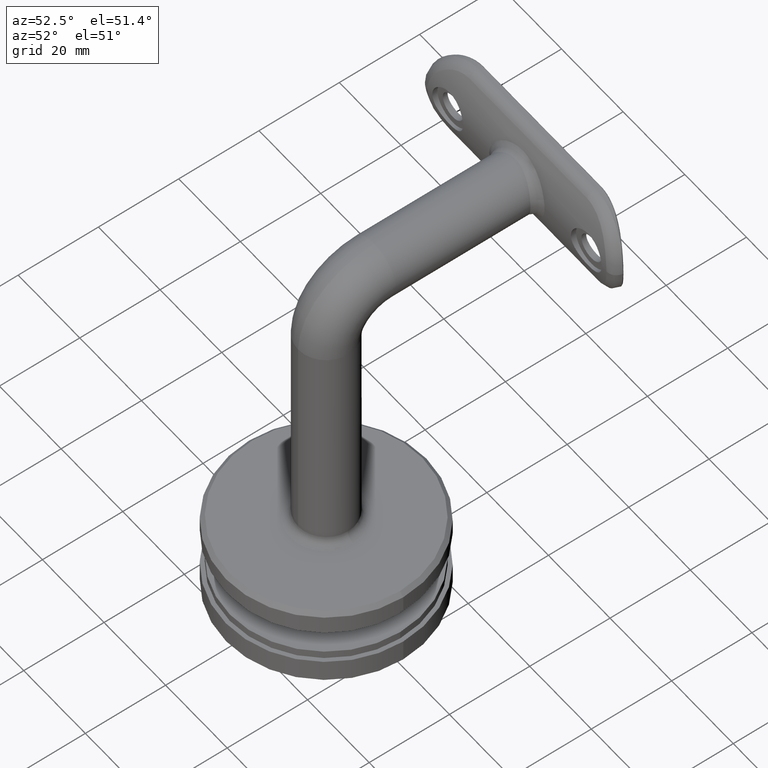
[diagram: clean part render]
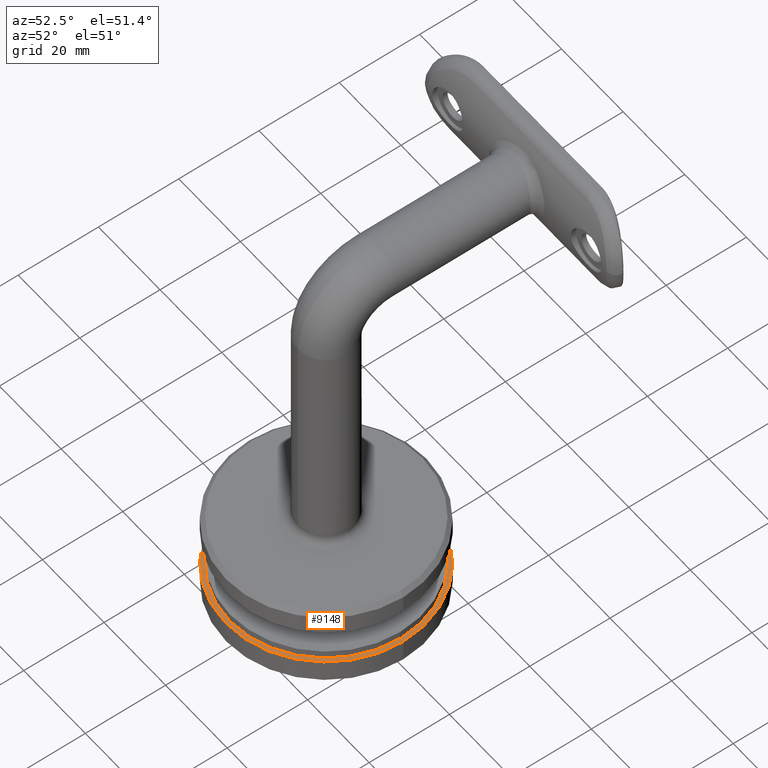
[diagram: same view with one face highlighted and labeled with its STEP entity id]
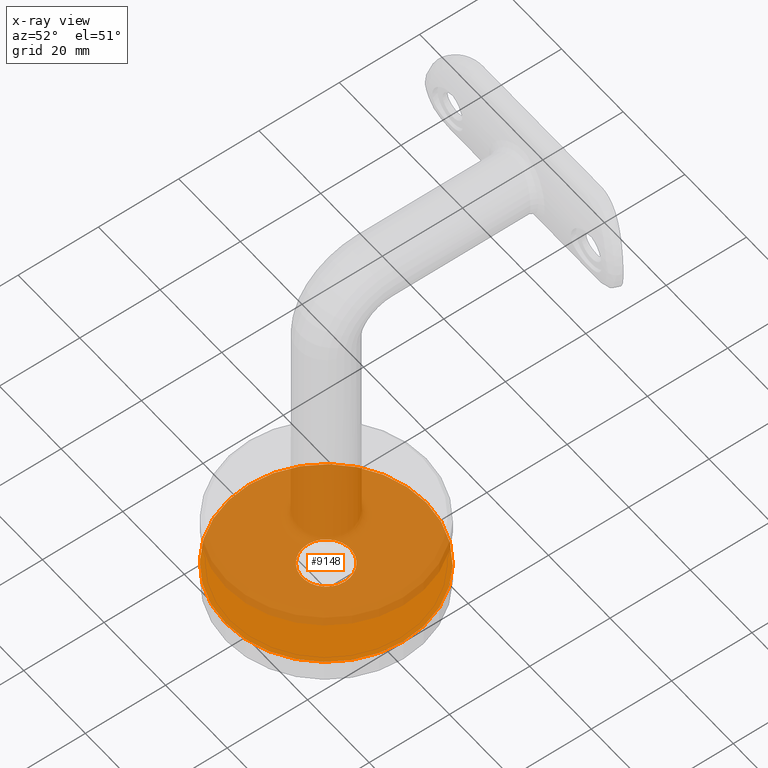
[diagram: x-ray of the same camera — body ghosted, the highlighted face saturated]
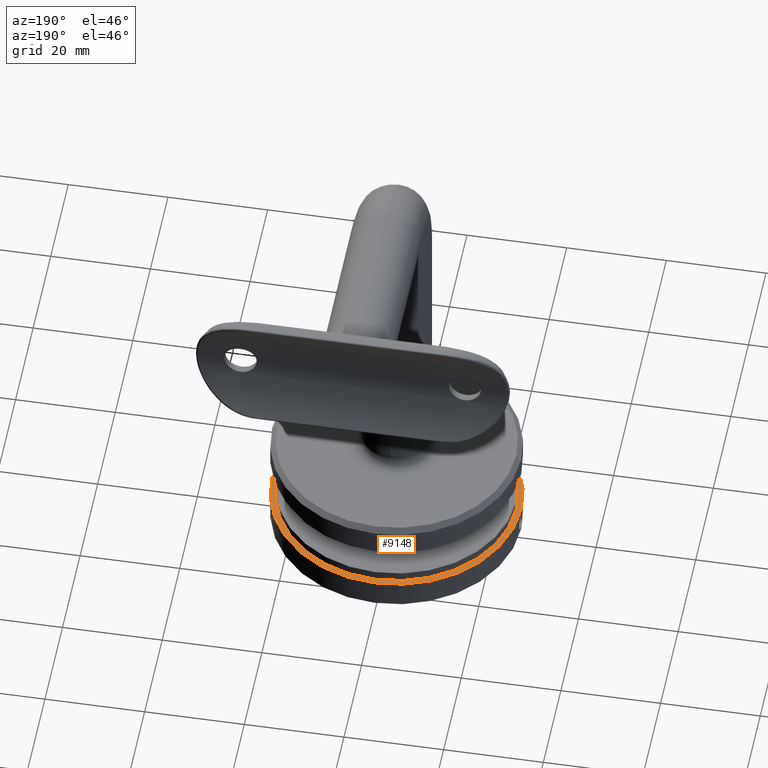
[diagram: same view with one face highlighted and labeled with its STEP entity id]
A machine part, auxiliary view. The second image highlights one B-rep face of the part: STEP entity #9148.
The next image is the same camera in x-ray: the body ghosted, the highlighted face saturated — about 76% of this face is hidden behind the body in this view.
A second angle (auxiliary view) of the same face is appended — the face is thin or edge-on in the first view.
In plain terms, the highlighted planar face has unit normal (0, 0, 1).
Its self-contained STEP definition (entity closure, byte-faithful):
#275 = ORIENTED_EDGE ( 'NONE', *, *, #22290, .T. ) ;
#616 = VERTEX_POINT ( 'NONE', #21967 ) ;
#636 = CARTESIAN_POINT ( 'NONE',  ( 7.347880794884119736E-16, -6.000000000000000000, 6.000000000000004441 ) ) ;
#678 = DIRECTION ( 'NONE',  ( 0.000000000000000000, 1.000000000000000000, 1.445602896647339410E-16 ) ) ;
#783 = CARTESIAN_POINT ( 'NONE',  ( 0.000000000000000000, -7.347880794884118750E-16, 6.000000000000005329 ) ) ;
#1135 = ORIENTED_EDGE ( 'NONE', *, *, #16023, .F. ) ;
#1779 = DIRECTION ( 'NONE',  ( 0.000000000000000000, -1.000000000000000000, -1.224646799147353207E-16 ) ) ;
#2317 = CIRCLE ( 'NONE', #3989, 25.00000000000000355 ) ;
#2873 = CARTESIAN_POINT ( 'NONE',  ( 0.000000000000000000, -7.347880794884114806E-16, 6.000000000000005329 ) ) ;
#3901 = CIRCLE ( 'NONE', #14019, 5.999999999999999112 ) ;
#3989 = AXIS2_PLACEMENT_3D ( 'NONE', #7028, #15768, #20982 ) ;
#4077 = FACE_OUTER_BOUND ( 'NONE', #19002, .T. ) ;
#4879 = DIRECTION ( 'NONE',  ( 0.000000000000000000, 1.224646799147353207E-16, -1.000000000000000000 ) ) ;
#5892 = ORIENTED_EDGE ( 'NONE', *, *, #9458, .T. ) ;
#5964 = CARTESIAN_POINT ( 'NONE',  ( 0.000000000000000000, -7.347880794884118750E-16, 6.000000000000005329 ) ) ;
#7006 = CARTESIAN_POINT ( 'NONE',  ( 3.061616997868383437E-15, -25.00000000000000355, 6.000000000000001776 ) ) ;
#7028 = CARTESIAN_POINT ( 'NONE',  ( 0.000000000000000000, -7.347880794884114806E-16, 6.000000000000005329 ) ) ;
#7101 = CARTESIAN_POINT ( 'NONE',  ( 0.000000000000000000, 5.999999999999998224, 6.000000000000006217 ) ) ;
#7370 = FACE_BOUND ( 'NONE', #16174, .T. ) ;
#7980 = DIRECTION ( 'NONE',  ( 0.000000000000000000, 1.000000000000000000, 1.445602896647339410E-16 ) ) ;
#9148 = ADVANCED_FACE ( 'NONE', ( #7370, #4077 ), #20793, .T. ) ;
#9458 = EDGE_CURVE ( 'NONE', #19756, #19598, #18246, .T. ) ;
#9915 = DIRECTION ( 'NONE',  ( 0.000000000000000000, 1.000000000000000000, 1.387778780781445429E-16 ) ) ;
#12019 = VERTEX_POINT ( 'NONE', #7006 ) ;
#14019 = AXIS2_PLACEMENT_3D ( 'NONE', #783, #16483, #7980 ) ;
#15502 = DIRECTION ( 'NONE',  ( 0.000000000000000000, -1.224646799147353207E-16, 1.000000000000000000 ) ) ;
#15768 = DIRECTION ( 'NONE',  ( 0.000000000000000000, 1.224646799147353207E-16, -1.000000000000000000 ) ) ;
#16023 = EDGE_CURVE ( 'NONE', #12019, #616, #2317, .T. ) ;
#16109 = ORIENTED_EDGE ( 'NONE', *, *, #18623, .F. ) ;
#16143 = CIRCLE ( 'NONE', #20913, 25.00000000000000355 ) ;
#16166 = DIRECTION ( 'NONE',  ( 0.000000000000000000, 1.224646799147353207E-16, -1.000000000000000000 ) ) ;
#16174 = EDGE_LOOP ( 'NONE', ( #275, #5892 ) ) ;
#16483 = DIRECTION ( 'NONE',  ( 0.000000000000000000, 1.224646799147353207E-16, -1.000000000000000000 ) ) ;
#18246 = CIRCLE ( 'NONE', #22478, 5.999999999999999112 ) ;
#18623 = EDGE_CURVE ( 'NONE', #616, #12019, #16143, .T. ) ;
#19002 = EDGE_LOOP ( 'NONE', ( #16109, #1135 ) ) ;
#19106 = CARTESIAN_POINT ( 'NONE',  ( 0.000000000000000000, 5.999999999999998224, 6.000000000000005329 ) ) ;
#19598 = VERTEX_POINT ( 'NONE', #7101 ) ;
#19756 = VERTEX_POINT ( 'NONE', #636 ) ;
#20087 = AXIS2_PLACEMENT_3D ( 'NONE', #19106, #15502, #1779 ) ;
#20793 = PLANE ( 'NONE',  #20087 ) ;
#20913 = AXIS2_PLACEMENT_3D ( 'NONE', #2873, #4879, #9915 ) ;
#20982 = DIRECTION ( 'NONE',  ( 0.000000000000000000, 1.000000000000000000, 1.387778780781445429E-16 ) ) ;
#21967 = CARTESIAN_POINT ( 'NONE',  ( 0.000000000000000000, 25.00000000000000355, 6.000000000000008882 ) ) ;
#22290 = EDGE_CURVE ( 'NONE', #19598, #19756, #3901, .T. ) ;
#22478 = AXIS2_PLACEMENT_3D ( 'NONE', #5964, #16166, #678 ) ;